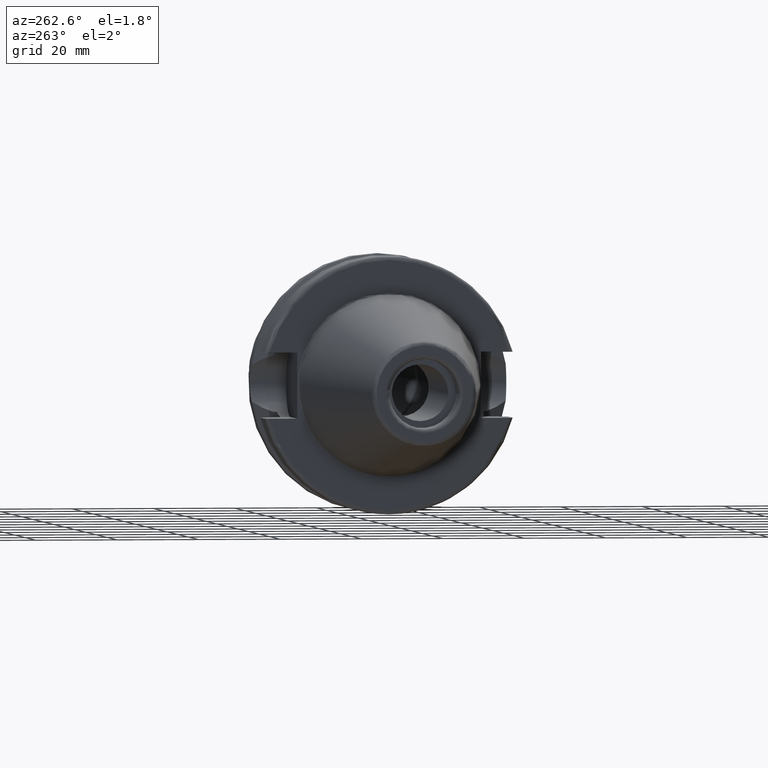
[diagram: clean part render]
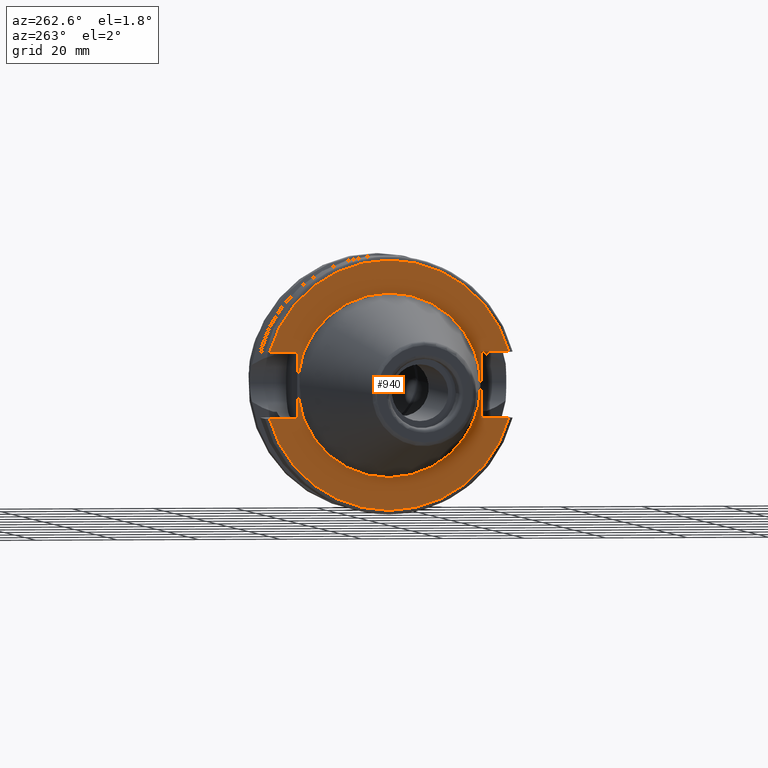
[diagram: same view with one face highlighted and labeled with its STEP entity id]
A machine part, auxiliary view. The second image highlights one B-rep face of the part: STEP entity #940.
In plain terms, the highlighted planar face has unit normal (-1, 0, 0).
Its self-contained STEP definition (entity closure, byte-faithful):
#72=LINE('',#2016,#119);
#76=LINE('',#2024,#123);
#79=LINE('',#2044,#126);
#90=LINE('',#2144,#137);
#93=LINE('',#2165,#140);
#95=LINE('',#2168,#142);
#119=VECTOR('',#1202,10.);
#123=VECTOR('',#1208,10.);
#126=VECTOR('',#1213,10.);
#137=VECTOR('',#1268,10.);
#140=VECTOR('',#1273,10.);
#142=VECTOR('',#1277,10.);
#174=FACE_BOUND('',#301,.T.);
#190=PLANE('',#1065);
#236=FACE_OUTER_BOUND('',#300,.T.);
#300=EDGE_LOOP('',(#827,#828,#829,#830,#831,#832,#833,#834));
#301=EDGE_LOOP('',(#835));
#353=CIRCLE('',#1042,30.5);
#365=CIRCLE('',#1064,22.5);
#366=CIRCLE('',#1066,30.5);
#426=VERTEX_POINT('',#2004);
#427=VERTEX_POINT('',#2015);
#429=VERTEX_POINT('',#2021);
#430=VERTEX_POINT('',#2023);
#445=VERTEX_POINT('',#2104);
#452=VERTEX_POINT('',#2141);
#453=VERTEX_POINT('',#2143);
#457=VERTEX_POINT('',#2164);
#465=VERTEX_POINT('',#2194);
#533=EDGE_CURVE('',#427,#426,#72,.T.);
#537=EDGE_CURVE('',#430,#429,#76,.T.);
#542=EDGE_CURVE('',#429,#427,#79,.T.);
#562=EDGE_CURVE('',#430,#445,#353,.T.);
#572=EDGE_CURVE('',#453,#452,#90,.T.);
#577=EDGE_CURVE('',#457,#445,#93,.T.);
#579=EDGE_CURVE('',#452,#457,#95,.T.);
#593=EDGE_CURVE('',#465,#465,#365,.T.);
#594=EDGE_CURVE('',#453,#426,#366,.T.);
#827=ORIENTED_EDGE('',*,*,#533,.T.);
#828=ORIENTED_EDGE('',*,*,#594,.F.);
#829=ORIENTED_EDGE('',*,*,#572,.T.);
#830=ORIENTED_EDGE('',*,*,#579,.T.);
#831=ORIENTED_EDGE('',*,*,#577,.T.);
#832=ORIENTED_EDGE('',*,*,#562,.F.);
#833=ORIENTED_EDGE('',*,*,#537,.T.);
#834=ORIENTED_EDGE('',*,*,#542,.T.);
#835=ORIENTED_EDGE('',*,*,#593,.T.);
#940=ADVANCED_FACE('',(#236,#174),#190,.T.);
#1042=AXIS2_PLACEMENT_3D('',#2105,#1255,#1256);
#1064=AXIS2_PLACEMENT_3D('',#2196,#1313,#1314);
#1065=AXIS2_PLACEMENT_3D('',#2197,#1315,#1316);
#1066=AXIS2_PLACEMENT_3D('',#2198,#1317,#1318);
#1202=DIRECTION('',(0.,-1.,0.));
#1208=DIRECTION('',(0.,1.,0.));
#1213=DIRECTION('',(0.,0.,1.));
#1255=DIRECTION('center_axis',(1.,0.,0.));
#1256=DIRECTION('ref_axis',(0.,0.,-1.));
#1268=DIRECTION('',(0.,-1.,0.));
#1273=DIRECTION('',(0.,1.,0.));
#1277=DIRECTION('',(0.,0.,-1.));
#1313=DIRECTION('center_axis',(1.,0.,0.));
#1314=DIRECTION('ref_axis',(0.,0.,-1.));
#1315=DIRECTION('center_axis',(-1.,0.,0.));
#1316=DIRECTION('ref_axis',(0.,0.,1.));
#1317=DIRECTION('center_axis',(1.,0.,0.));
#1318=DIRECTION('ref_axis',(0.,0.,-1.));
#2004=CARTESIAN_POINT('',(1.99999999999999,-29.4184890842477,8.05));
#2015=CARTESIAN_POINT('',(1.99999999999999,-22.6,8.05));
#2016=CARTESIAN_POINT('',(1.99999999999999,3.95,8.05));
#2021=CARTESIAN_POINT('',(1.99999999999999,-22.6,-8.05));
#2023=CARTESIAN_POINT('',(1.99999999999999,-29.4184890842477,-8.05));
#2024=CARTESIAN_POINT('',(1.99999999999999,3.95,-8.05));
#2044=CARTESIAN_POINT('',(1.99999999999999,-22.6,0.));
#2104=CARTESIAN_POINT('',(1.99999999999999,29.4184890842477,-8.05));
#2105=CARTESIAN_POINT('Origin',(1.99999999999999,0.,0.));
#2141=CARTESIAN_POINT('',(1.99999999999999,22.6,8.05));
#2143=CARTESIAN_POINT('',(1.99999999999999,29.4184890842477,8.05));
#2144=CARTESIAN_POINT('',(1.99999999999999,26.55,8.05));
#2164=CARTESIAN_POINT('',(1.99999999999999,22.6,-8.05));
#2165=CARTESIAN_POINT('',(1.99999999999999,26.55,-8.05));
#2168=CARTESIAN_POINT('',(1.99999999999999,22.6,0.));
#2194=CARTESIAN_POINT('',(2.,-2.75545529808154E-15,22.5));
#2196=CARTESIAN_POINT('Origin',(2.,0.,0.));
#2197=CARTESIAN_POINT('Origin',(1.99999999999999,30.5,0.));
#2198=CARTESIAN_POINT('Origin',(1.99999999999999,0.,0.));